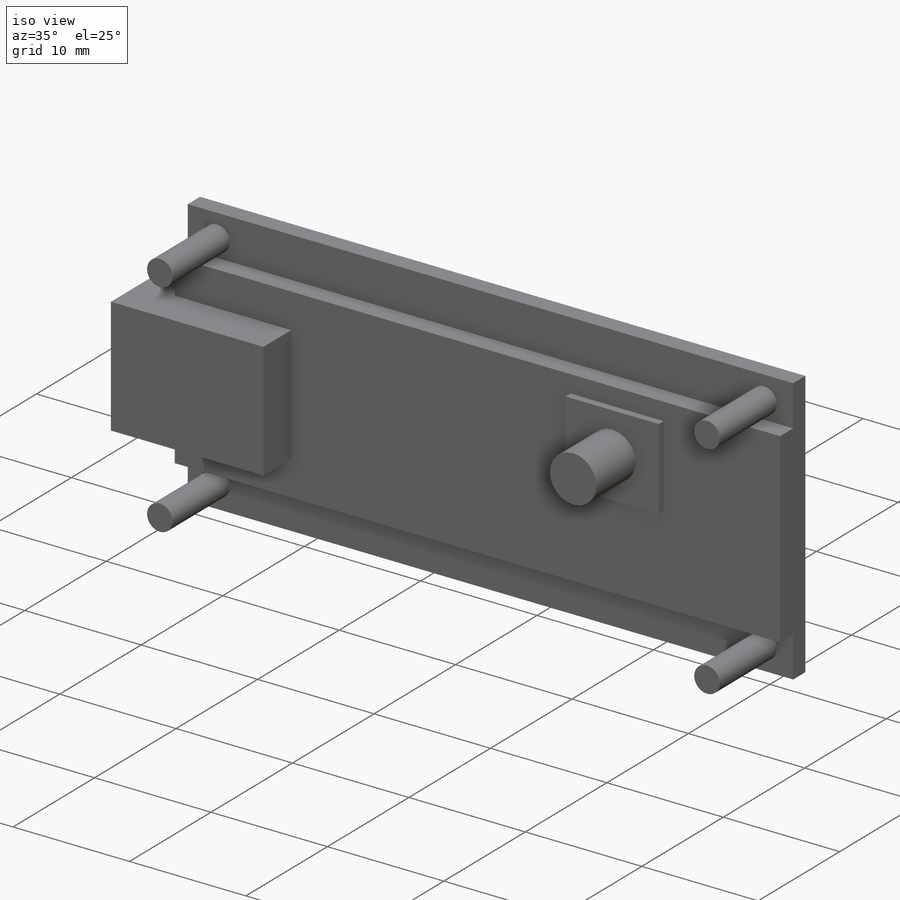
[diagram: iso view]
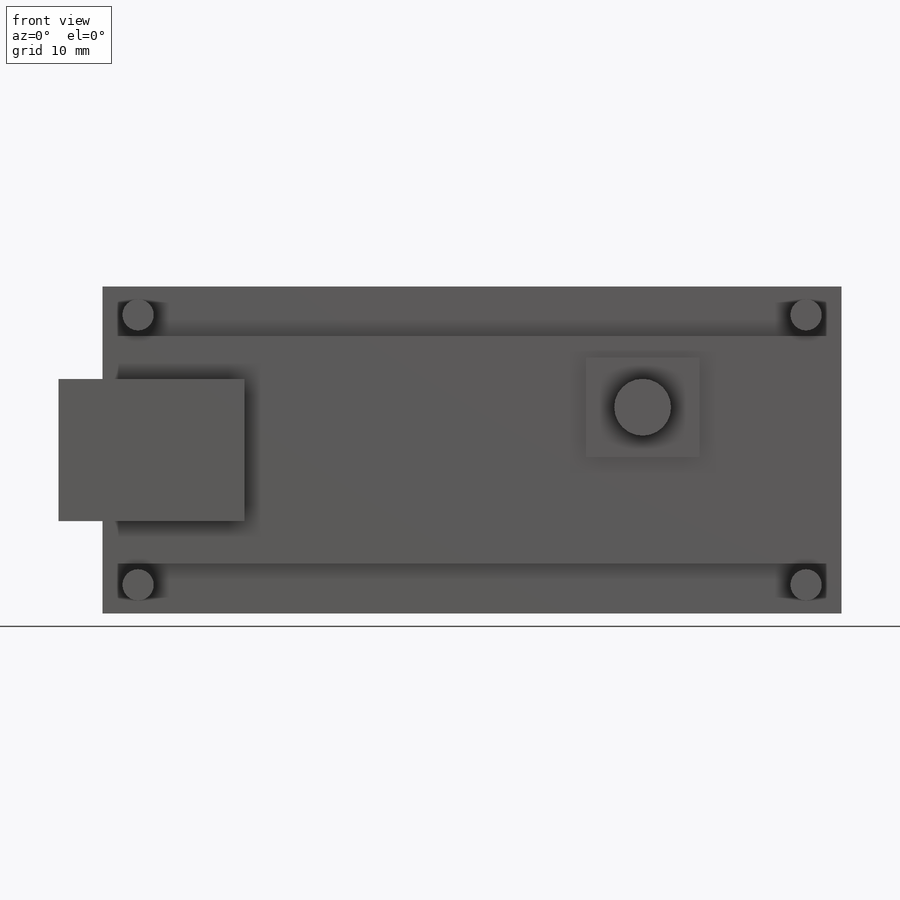
[diagram: front view]
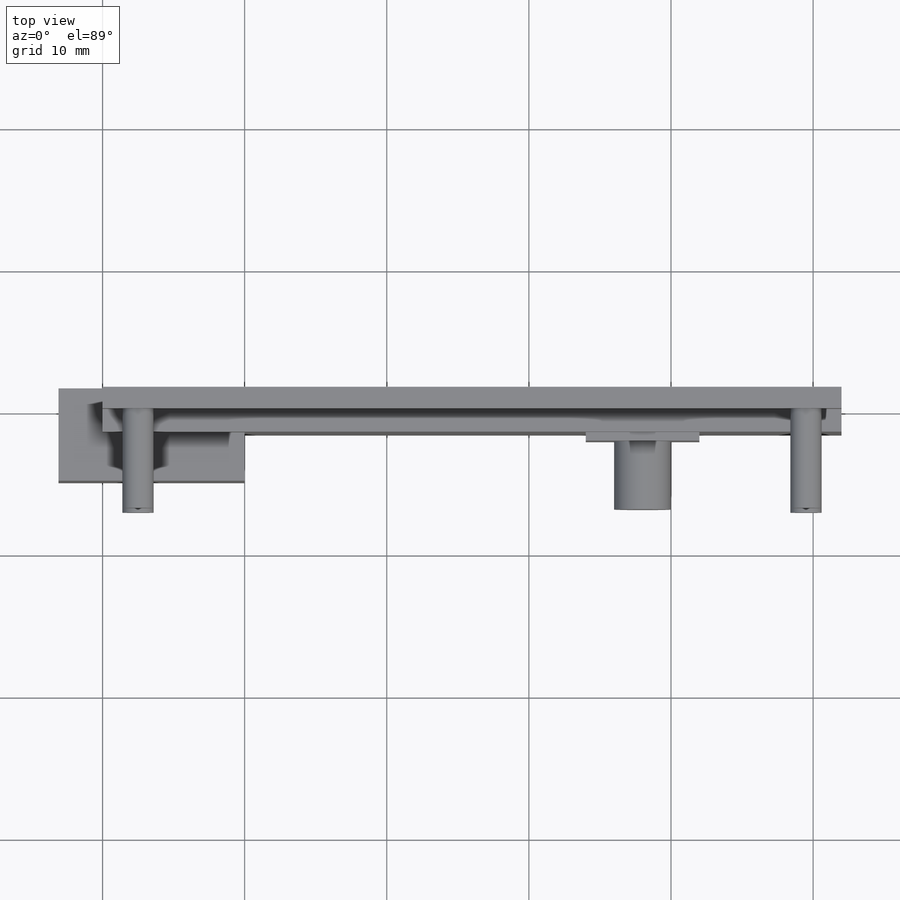
[diagram: top view]
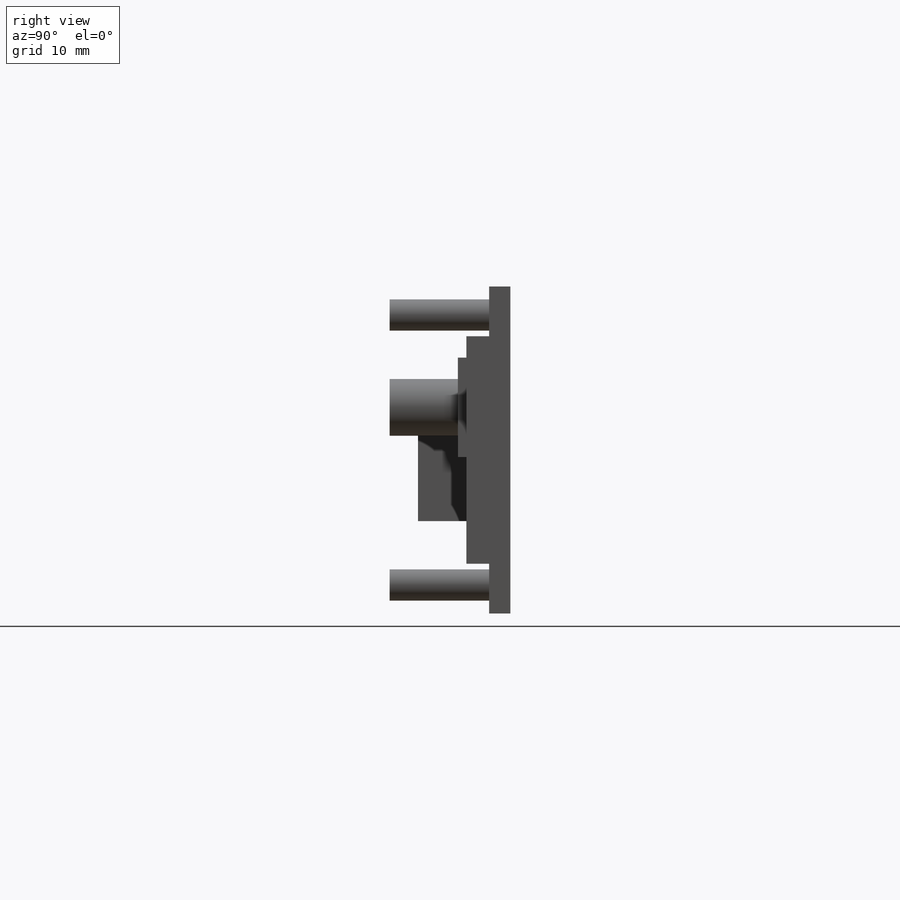
[diagram: right view]
SOLIDWORKS PART (.sldprt)
format: sldprt  version: not decoded by parser v0  size: 597,504 bytes
history: native  units: mm
features: sketch x8, extrude x8, material x1 (+12 scaffold rows collapsed; 1 parser-record rows omitted)
feature tree (30):
  scaffold x12  (default folders/planes/origin — collapsed)
  material  "Material <not specified>"
  sketch  "Sketch1"  dims[D3=2.2mm D1=52.0mm D2=23.0mm D4=19.0mm D5=47.0mm]
  extrude  "ext PCB"  Depth=1.5mm
  sketch  "Sketch2"  dims[D1=1.1mm D2=10.0mm D3=10.0mm]
  extrude  "ext USB socket"  Depth=5mm
  sketch  "Sketch3"  dims[D1=3.5mm D2=3.5mm]
  extrude  "ext Components"  Depth=1.6mm
  sketch  "Sketch4"  dims[D5=4.0mm D1=10.0mm D2=5.0mm D3=7.0mm D4=8.0mm]
  extrude  "ext Reset button"  Depth=2.2mm
  extrude  "ext Reset Button Peg"  [1 undecoded]
  sketch  "Sketch4<3>"  dims[D1=3.5mm]
  sketch  "Sketch5"  dims[D1=0.3mm D2=0.3mm D3=0.3mm D4=0.3mm]
  extrude  "ext USB Plug"  Depth=2mm
  parser-record x1  (decoder bookkeeping rows leaked as tree rows — omitted from the tree; the rows remain in map.json)
  sketch  "Sketch6"  dims[D1=0.0mm]
  extrude  "ext USB slot"  [1 undecoded]
  sketch  "Sketch7"
  extrude  "ext Mounts "  [1 undecoded]
decode coverage: 12 of 16 modeling features carry decoded parameters
note: 3 parameter values undecoded
summary: no parameter record found for 3 features
note: suppression state not decoded; provenance and decode notes live in map.json
